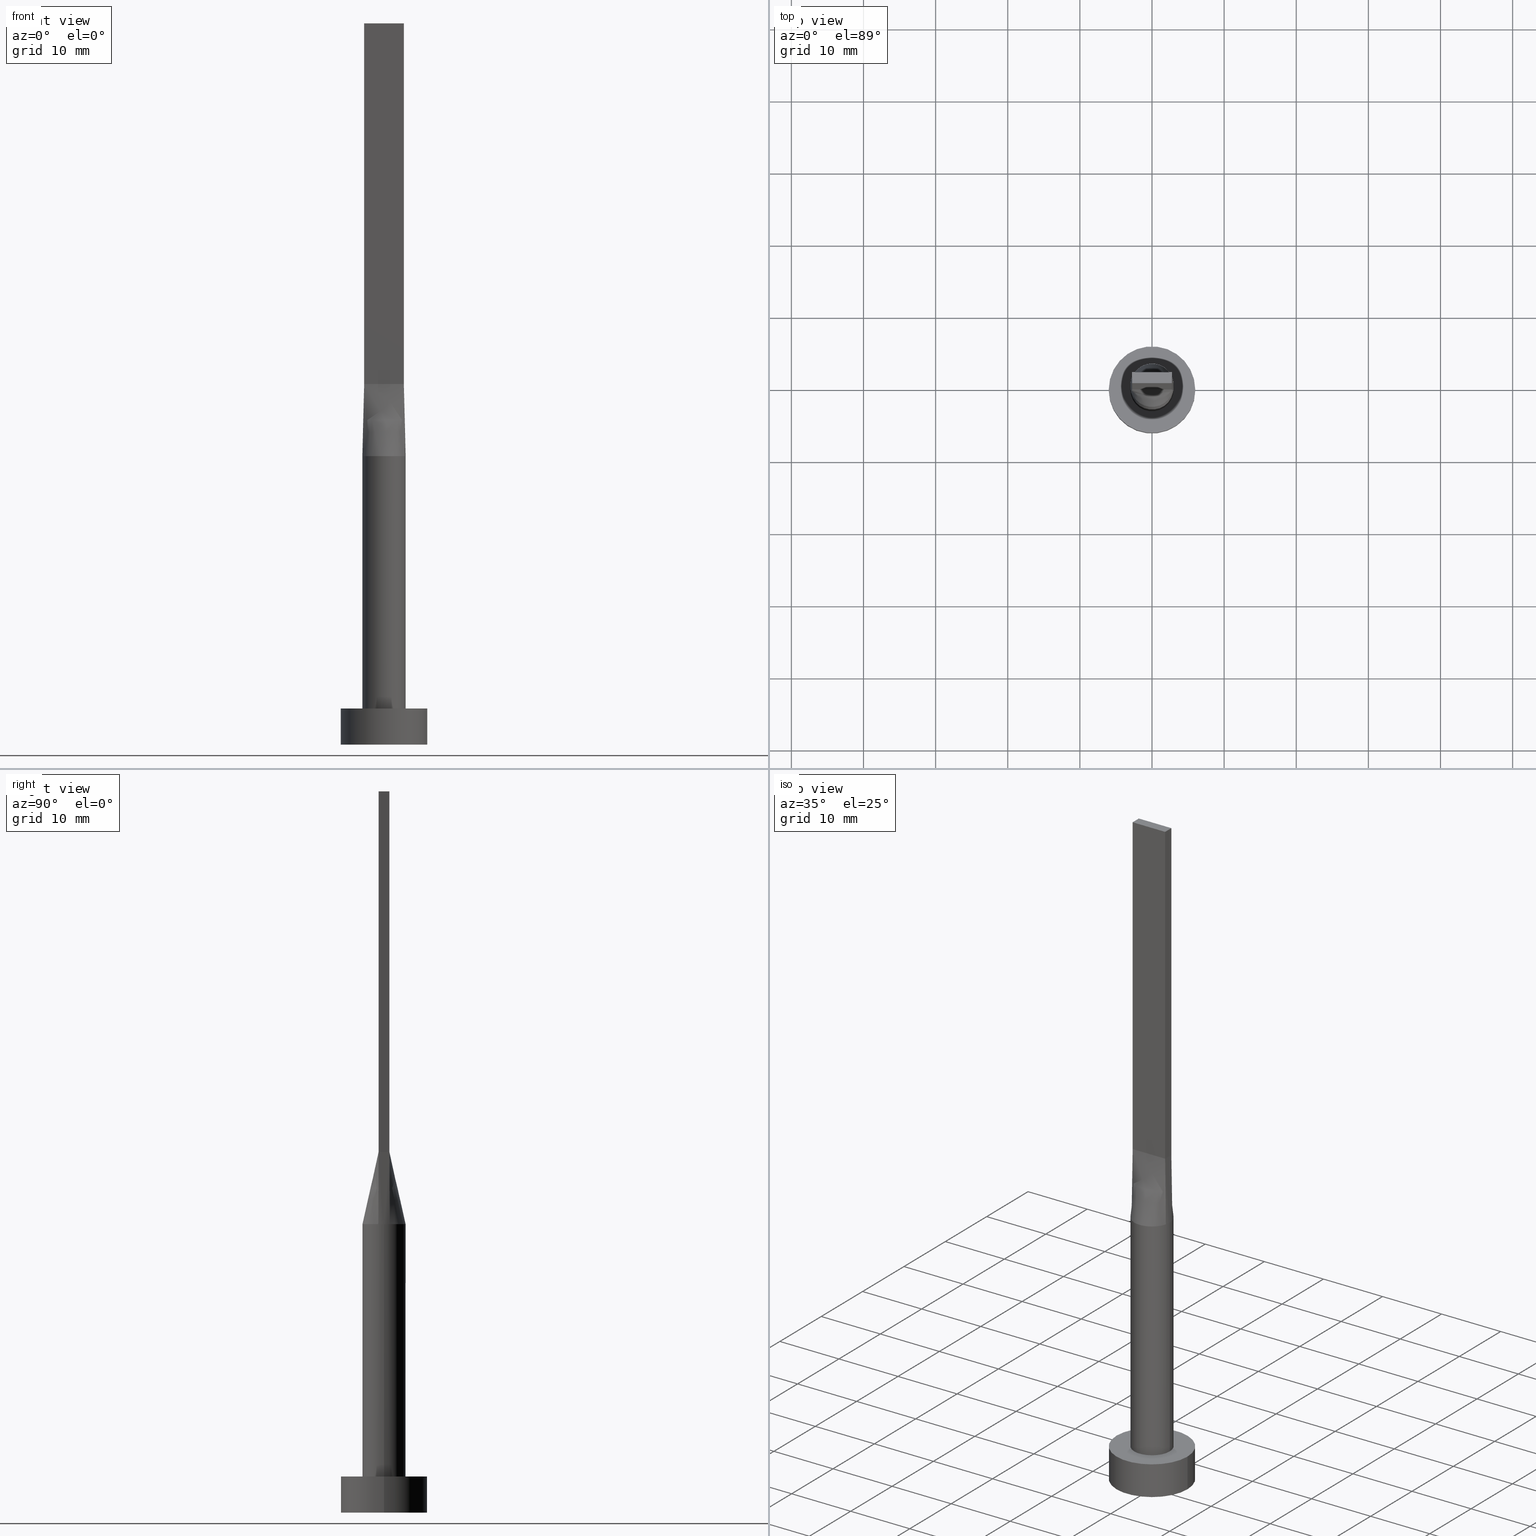
[diagram: canonical four-view strip — front | top / right | iso, engineering-drawing reading convention]
A machine part, canonical four-view strip (front | top / right | iso — engineering-drawing reading convention). The complete STEP part file that produces these views, byte-faithful:
ISO-10303-21;
HEADER;
FILE_DESCRIPTION (( 'STEP AP203' ),
    '1' );
FILE_NAME ('23a7.STEP',
    '2023-02-13T11:40:01',
    ( '' ),
    ( '' ),
    'SwSTEP 2.0',
    'SolidWorks 2019',
    '' );
FILE_SCHEMA (( 'CONFIG_CONTROL_DESIGN' ));
ENDSEC;

DATA;
#1 = LINE ( 'NONE', #192, #541 ) ;
#2 = FACE_OUTER_BOUND ( 'NONE', #331, .T. ) ;
#3 = ORIENTED_EDGE ( 'NONE', *, *, #50, .F. ) ;
#4 = CARTESIAN_POINT ( 'NONE',  ( 2.750000000000000000, -0.4999999999999992784, 50.00000000000000000 ) ) ;
#5 = ADVANCED_FACE ( 'NONE', ( #2 ), #351, .T. ) ;
#6 = CARTESIAN_POINT ( 'NONE',  ( 2.750000000000000000, -0.7499999999999997780, 50.00000000000000000 ) ) ;
#7 = DIRECTION ( 'NONE',  ( 1.000000000000000000, 0.000000000000000000, 0.000000000000000000 ) ) ;
#8 = VERTEX_POINT ( 'NONE', #97 ) ;
#9 = CARTESIAN_POINT ( 'NONE',  ( -2.894489875237701959, -0.7894071376467488577, 40.00000000000000000 ) ) ;
#10 = AXIS2_PLACEMENT_3D ( 'NONE', #124, #530, #517 ) ;
#11 = CARTESIAN_POINT ( 'NONE',  ( 2.750000000000000000, 0.7500000000000002220, 100.0000000000000000 ) ) ;
#12 = CARTESIAN_POINT ( 'NONE',  ( -0.2291666666666670460, 0.7500000000000003331, 50.00000000000000711 ) ) ;
#13 = VERTEX_POINT ( 'NONE', #369 ) ;
#14 = DIRECTION ( 'NONE',  ( 0.000000000000000000, 0.000000000000000000, 1.000000000000000000 ) ) ;
#15 =( GEOMETRIC_REPRESENTATION_CONTEXT ( 3 ) GLOBAL_UNCERTAINTY_ASSIGNED_CONTEXT ( ( #381 ) ) GLOBAL_UNIT_ASSIGNED_CONTEXT ( ( #115, #258, #422 ) ) REPRESENTATION_CONTEXT ( 'NONE', 'WORKASPACE' ) );
#16 = CARTESIAN_POINT ( 'NONE',  ( -2.750000000000000000, 0.7500000000000002220, 50.00000000000000000 ) ) ;
#17 = EDGE_CURVE ( 'NONE', #207, #441, #42, .T. ) ;
#18 = VERTEX_POINT ( 'NONE', #280 ) ;
#19 = CARTESIAN_POINT ( 'NONE',  ( -2.894291463713197121, -0.7893522173763259930, 40.00000000000000000 ) ) ;
#20 = CARTESIAN_POINT ( 'NONE',  ( 2.894291463713197121, 0.7893522173763263261, 40.00000000000000000 ) ) ;
#21 = CARTESIAN_POINT ( 'NONE',  ( 0.3818979204996085230, 3.000000000000001332, 40.00000000000000000 ) ) ;
#22 = LOCAL_TIME ( 12, 40, 1.000000000000000000, #448 ) ;
#23 = EDGE_CURVE ( 'NONE', #303, #363, #284, .T. ) ;
#24 = CARTESIAN_POINT ( 'NONE',  ( 1.604166666666666519, 0.7500000000000002220, 50.00000000000000000 ) ) ;
#25 = DIRECTION ( 'NONE',  ( 0.000000000000000000, 0.000000000000000000, 1.000000000000000000 ) ) ;
#26 = ORIENTED_EDGE ( 'NONE', *, *, #487, .F. ) ;
#27 = CARTESIAN_POINT ( 'NONE',  ( 2.750000000000000000, 0.7500000000000002220, 100.0000000000000000 ) ) ;
#28 = CARTESIAN_POINT ( 'NONE',  ( -6.000000000000000888, 0.000000000000000000, 5.000000000000000000 ) ) ;
#29 = ORIENTED_EDGE ( 'NONE', *, *, #446, .T. ) ;
#30 = PLANE ( 'NONE',  #401 ) ;
#31 = EDGE_CURVE ( 'NONE', #8, #230, #326, .T. ) ;
#32 = VERTEX_POINT ( 'NONE', #9 ) ;
#33 = AXIS2_PLACEMENT_3D ( 'NONE', #174, #312, #399 ) ;
#34 = CARTESIAN_POINT ( 'NONE',  ( 0.000000000000000000, 0.000000000000000000, 100.0000000000000000 ) ) ;
#35 = LOCAL_TIME ( 12, 40, 1.000000000000000000, #451 ) ;
#36 = ORIENTED_EDGE ( 'NONE', *, *, #425, .F. ) ;
#37 = CARTESIAN_POINT ( 'NONE',  ( -2.750000000000000000, 0.7500000000000002220, 100.0000000000000000 ) ) ;
#38 = ORIENTED_EDGE ( 'NONE', *, *, #277, .F. ) ;
#39 = ORIENTED_EDGE ( 'NONE', *, *, #546, .F. ) ;
#40 = APPROVAL_DATE_TIME ( #533, #395 ) ;
#41 = ADVANCED_FACE ( 'NONE', ( #535 ), #136, .F. ) ;
#42 = LINE ( 'NONE', #545, #222 ) ;
#43 = APPROVAL_PERSON_ORGANIZATION ( #397, #395, #400 ) ;
#44 = DATE_AND_TIME ( #525, #90 ) ;
#45 = ORIENTED_EDGE ( 'NONE', *, *, #209, .T. ) ;
#46 = CARTESIAN_POINT ( 'NONE',  ( -2.248179627679386616, -2.014142483996539390, 39.99999999999999289 ) ) ;
#47 = CYLINDRICAL_SURFACE ( 'NONE', #365, 3.000000000000000444 ) ;
#48 = CARTESIAN_POINT ( 'NONE',  ( -2.291666666666665186, -0.7499999999999995559, 50.00000000000000000 ) ) ;
#49 = CLOSED_SHELL ( 'NONE', ( #571, #455, #324, #246, #377, #130, #5, #419, #103, #85, #237, #501, #528, #41, #138 ) ) ;
#50 = EDGE_CURVE ( 'NONE', #408, #18, #529, .T. ) ;
#51 = DIRECTION ( 'NONE',  ( 0.000000000000000000, 0.000000000000000000, 1.000000000000000000 ) ) ;
#52 = CARTESIAN_POINT ( 'NONE',  ( 2.520833333333333481, -0.7499999999999997780, 50.00000000000000000 ) ) ;
#53 = FACE_OUTER_BOUND ( 'NONE', #215, .T. ) ;
#54 = CARTESIAN_POINT ( 'NONE',  ( 1.604166666666668961, -0.7499999999999997780, 50.00000000000000000 ) ) ;
#55 = EDGE_LOOP ( 'NONE', ( #167, #398, #416, #447 ) ) ;
#56 = CARTESIAN_POINT ( 'NONE',  ( 0.000000000000000000, 0.000000000000000000, 5.000000000000000000 ) ) ;
#57 = CARTESIAN_POINT ( 'NONE',  ( 1.751288851749022379, 2.458468820606022565, 39.99999999999998579 ) ) ;
#58 = FACE_OUTER_BOUND ( 'NONE', #227, .T. ) ;
#59 = VERTEX_POINT ( 'NONE', #476 ) ;
#60 = CARTESIAN_POINT ( 'NONE',  ( -1.145833333333333703, 0.7500000000000002220, 50.00000000000000000 ) ) ;
#61 = CC_DESIGN_PERSON_AND_ORGANIZATION_ASSIGNMENT ( #179, #181, ( #157 ) ) ;
#62 = ORIENTED_EDGE ( 'NONE', *, *, #425, .T. ) ;
#63 = CARTESIAN_POINT ( 'NONE',  ( 0.000000000000000000, 0.000000000000000000, 5.000000000000000000 ) ) ;
#64 = APPROVAL_PERSON_ORGANIZATION ( #569, #519, #353 ) ;
#65 = CARTESIAN_POINT ( 'NONE',  ( -0.7628506052746797383, 2.924692134573155133, 40.00000000000000000 ) ) ;
#66 = DIRECTION ( 'NONE',  ( -0.000000000000000000, -0.000000000000000000, -1.000000000000000000 ) ) ;
#67 = CARTESIAN_POINT ( 'NONE',  ( 2.822145731856598339, 0.7696761086881640512, 45.00000000000000000 ) ) ;
#68 = EDGE_CURVE ( 'NONE', #59, #303, #245, .T. ) ;
#69 = CARTESIAN_POINT ( 'NONE',  ( -1.751288851749021491, 2.458468820606022565, 39.99999999999999289 ) ) ;
#70 = CARTESIAN_POINT ( 'NONE',  ( -6.000000000000000888, 0.000000000000000000, 5.000000000000000000 ) ) ;
#71 = VECTOR ( 'NONE', #114, 1000.000000000000000 ) ;
#72 = DIRECTION ( 'NONE',  ( 0.000000000000000000, 0.000000000000000000, 1.000000000000000000 ) ) ;
#73 = CARTESIAN_POINT ( 'NONE',  ( -0.3818979204996078569, 3.000000000000000888, 40.00000000000000000 ) ) ;
#74 = EDGE_LOOP ( 'NONE', ( #560, #548 ) ) ;
#75 = FACE_OUTER_BOUND ( 'NONE', #341, .T. ) ;
#76 = APPROVAL_DATE_TIME ( #44, #519 ) ;
#77 = FACE_OUTER_BOUND ( 'NONE', #352, .T. ) ;
#78 = B_SPLINE_SURFACE_WITH_KNOTS ( 'NONE', 3, 1, ( 
 ( #551, #338 ),
 ( #513, #336 ),
 ( #505, #249 ),
 ( #105, #380 ),
 ( #471, #101 ),
 ( #19, #251 ) ),
 .UNSPECIFIED., .F., .F., .F.,
 ( 4, 2, 4 ),
 ( 2, 2 ),
 ( 0.000000000000000000, 0.5000000000000000000, 1.000000000000000000 ),
 ( 0.000000000000000000, 1.000000000000000000 ),
 .UNSPECIFIED. ) ;
#79 = VERTEX_POINT ( 'NONE', #107 ) ;
#80 = DIRECTION ( 'NONE',  ( -0.000000000000000000, 1.000000000000000000, -0.000000000000000000 ) ) ;
#81 = AXIS2_PLACEMENT_3D ( 'NONE', #542, #14, #461 ) ;
#82 = ORIENTED_EDGE ( 'NONE', *, *, #465, .T. ) ;
#83 = CARTESIAN_POINT ( 'NONE',  ( 2.750000000000000000, -0.7499999999999997780, 100.0000000000000000 ) ) ;
#84 = DATE_TIME_ROLE ( 'classification_date' ) ;
#85 = ADVANCED_FACE ( 'NONE', ( #334 ), #171, .T. ) ;
#86 = CARTESIAN_POINT ( 'NONE',  ( 1.447928580458857972, -2.653161878569119558, 40.00000000000000000 ) ) ;
#87 = ORIENTED_EDGE ( 'NONE', *, *, #92, .F. ) ;
#88 = DATE_AND_TIME ( #532, #140 ) ;
#89 = CARTESIAN_POINT ( 'NONE',  ( 2.894291463713196677, -0.7893522173763275473, 40.00000000000000000 ) ) ;
#90 = LOCAL_TIME ( 12, 40, 1.000000000000000000, #319 ) ;
#91 = CARTESIAN_POINT ( 'NONE',  ( 1.833333333333335258, -0.7499999999999997780, 50.00000000000000000 ) ) ;
#92 = EDGE_CURVE ( 'NONE', #223, #127, #193, .T. ) ;
#93 = CARTESIAN_POINT ( 'NONE',  ( 3.000000000000000888, -0.2678361673275873600, 39.99999999999999289 ) ) ;
#94 = CARTESIAN_POINT ( 'NONE',  ( -1.833333333333331261, -0.7499999999999995559, 50.00000000000000000 ) ) ;
#95 = VECTOR ( 'NONE', #159, 1000.000000000000000 ) ;
#96 = DIRECTION ( 'NONE',  ( 1.000000000000000000, 0.000000000000000000, 0.000000000000000000 ) ) ;
#97 = CARTESIAN_POINT ( 'NONE',  ( 3.000000000000000888, 4.817174831141495148E-17, 39.99999999999999289 ) ) ;
#98 = VECTOR ( 'NONE', #234, 1000.000000000000000 ) ;
#99 = AXIS2_PLACEMENT_3D ( 'NONE', #459, #370, #96 ) ;
#100 = CARTESIAN_POINT ( 'NONE',  ( 3.000000000000000444, 0.2678361673275868049, 39.99999999999998579 ) ) ;
#101 = CARTESIAN_POINT ( 'NONE',  ( -2.750000000000000000, -0.4999999999999993339, 50.00000000000000000 ) ) ;
#102 = DIRECTION ( 'NONE',  ( 5.913830031739115543E-17, 1.000000000000000000, -0.000000000000000000 ) ) ;
#103 = ADVANCED_FACE ( 'NONE', ( #382 ), #78, .T. ) ;
#104 = ORIENTED_EDGE ( 'NONE', *, *, #199, .T. ) ;
#105 = CARTESIAN_POINT ( 'NONE',  ( -2.999999999999999112, -0.2678361673275861388, 39.99999999999998579 ) ) ;
#106 = PLANE ( 'NONE',  #276 ) ;
#107 = CARTESIAN_POINT ( 'NONE',  ( -3.000000000000000444, 0.000000000000000000, 5.000000000000000000 ) ) ;
#108 = VECTOR ( 'NONE', #428, 1000.000000000000000 ) ;
#109 = CARTESIAN_POINT ( 'NONE',  ( 0.000000000000000000, 0.000000000000000000, 40.00000000000000000 ) ) ;
#110 = LINE ( 'NONE', #296, #123 ) ;
#111 = CARTESIAN_POINT ( 'NONE',  ( 0.000000000000000000, 0.000000000000000000, 5.000000000000000000 ) ) ;
#112 = CARTESIAN_POINT ( 'NONE',  ( -2.291666666666666519, 0.7500000000000002220, 50.00000000000000000 ) ) ;
#113 = VERTEX_POINT ( 'NONE', #289 ) ;
#114 = DIRECTION ( 'NONE',  ( -0.000000000000000000, -0.000000000000000000, -1.000000000000000000 ) ) ;
#115 =( LENGTH_UNIT ( ) NAMED_UNIT ( * ) SI_UNIT ( .MILLI., .METRE. ) );
#116 = AXIS2_PLACEMENT_3D ( 'NONE', #63, #367, #186 ) ;
#117 = LINE ( 'NONE', #211, #298 ) ;
#118 = CARTESIAN_POINT ( 'NONE',  ( -0.7628506052746797383, 2.924692134573155133, 40.00000000000000000 ) ) ;
#119 = EDGE_LOOP ( 'NONE', ( #145, #440 ) ) ;
#120 = EDGE_CURVE ( 'NONE', #59, #441, #110, .T. ) ;
#121 = LINE ( 'NONE', #308, #98 ) ;
#122 = ADVANCED_BREP_SHAPE_REPRESENTATION ( '23a7', ( #350, #510 ), #15 ) ;
#123 = VECTOR ( 'NONE', #66, 1000.000000000000000 ) ;
#124 = CARTESIAN_POINT ( 'NONE',  ( 2.750000000000000000, 0.7500000000000002220, 100.0000000000000000 ) ) ;
#125 = PRODUCT_DEFINITION_SHAPE ( 'NONE', 'NONE',  #406 ) ;
#126 = ORIENTED_EDGE ( 'NONE', *, *, #190, .F. ) ;
#127 = VERTEX_POINT ( 'NONE', #427 ) ;
#128 = LINE ( 'NONE', #568, #135 ) ;
#129 = CIRCLE ( 'NONE', #99, 3.000000000000000444 ) ;
#130 = ADVANCED_FACE ( 'NONE', ( #392 ), #47, .T. ) ;
#131 = ORIENTED_EDGE ( 'NONE', *, *, #277, .T. ) ;
#132 = PERSON_AND_ORGANIZATION_ROLE ( 'design_supplier' ) ;
#133 = APPLICATION_CONTEXT ( 'configuration controlled 3d designs of mechanical parts and assemblies' ) ;
#134 = PERSON_AND_ORGANIZATION ( #453, #268 ) ;
#135 = VECTOR ( 'NONE', #524, 1000.000000000000000 ) ;
#136 = PLANE ( 'NONE',  #201 ) ;
#137 = PERSON_AND_ORGANIZATION ( #453, #268 ) ;
#138 = ADVANCED_FACE ( 'NONE', ( #168 ), #30, .T. ) ;
#139 = ORIENTED_EDGE ( 'NONE', *, *, #199, .F. ) ;
#140 = LOCAL_TIME ( 12, 40, 1.000000000000000000, #394 ) ;
#141 = CARTESIAN_POINT ( 'NONE',  ( 2.894514141151844910, -0.7894138151126538494, 40.00000000000000000 ) ) ;
#142 = CARTESIAN_POINT ( 'NONE',  ( -0.3818979204996094667, -3.000000000000000000, 40.00000000000000000 ) ) ;
#143 = DIRECTION ( 'NONE',  ( 0.000000000000000000, 0.000000000000000000, 1.000000000000000000 ) ) ;
#144 = CARTESIAN_POINT ( 'NONE',  ( 2.750000000000000000, -0.7499999999999997780, 100.0000000000000000 ) ) ;
#145 = ORIENTED_EDGE ( 'NONE', *, *, #564, .F. ) ;
#146 = CARTESIAN_POINT ( 'NONE',  ( -2.894506632021299541, 0.7894116946786272626, 40.00000000000000000 ) ) ;
#147 = CARTESIAN_POINT ( 'NONE',  ( -1.447928580458858416, 2.653161878569119558, 40.00000000000000000 ) ) ;
#148 = VECTOR ( 'NONE', #253, 1000.000000000000000 ) ;
#149 = CC_DESIGN_PERSON_AND_ORGANIZATION_ASSIGNMENT ( #536, #132, ( #157 ) ) ;
#150 = DIRECTION ( 'NONE',  ( 0.000000000000000000, 0.000000000000000000, 1.000000000000000000 ) ) ;
#151 = CARTESIAN_POINT ( 'NONE',  ( -2.750000000000000000, -0.7499999999999994449, 100.0000000000000000 ) ) ;
#152 = DIRECTION ( 'NONE',  ( 1.000000000000000000, 0.000000000000000000, 0.000000000000000000 ) ) ;
#153 = CARTESIAN_POINT ( 'NONE',  ( 2.733316749964668446, 1.269511353635831341, 40.00000000000002132 ) ) ;
#154 = CARTESIAN_POINT ( 'NONE',  ( 2.894482401701604424, 0.7894050286368272662, 40.00000000000000000 ) ) ;
#155 = EDGE_CURVE ( 'NONE', #363, #13, #117, .T. ) ;
#156 = CARTESIAN_POINT ( 'NONE',  ( -0.9166666666666669627, 0.7500000000000002220, 50.00000000000000000 ) ) ;
#157 = PRODUCT_DEFINITION_FORMATION_WITH_SPECIFIED_SOURCE ( 'LIBOVOLN�', '', #220, .NOT_KNOWN. ) ;
#158 = DIRECTION ( 'NONE',  ( -0.01442753284129399960, 0.003934781683989411159, 0.9998881756422629552 ) ) ;
#159 = DIRECTION ( 'NONE',  ( 1.000000000000000000, -5.913830031739115543E-17, 0.000000000000000000 ) ) ;
#160 = CARTESIAN_POINT ( 'NONE',  ( -1.447928580458858416, 2.653161878569119558, 40.00000000000000000 ) ) ;
#161 = ORIENTED_EDGE ( 'NONE', *, *, #553, .F. ) ;
#162 = LINE ( 'NONE', #340, #71 ) ;
#163 = VECTOR ( 'NONE', #364, 1000.000000000000000 ) ;
#164 = DIRECTION ( 'NONE',  ( -0.000000000000000000, -0.000000000000000000, -1.000000000000000000 ) ) ;
#165 = CARTESIAN_POINT ( 'NONE',  ( 2.442412046818595250, 1.765588549521970529, 40.00000000000000711 ) ) ;
#166 = CC_DESIGN_DATE_AND_TIME_ASSIGNMENT ( #88, #173, ( #406 ) ) ;
#167 = ORIENTED_EDGE ( 'NONE', *, *, #264, .T. ) ;
#168 = FACE_OUTER_BOUND ( 'NONE', #195, .T. ) ;
#169 = APPROVAL_STATUS ( 'not_yet_approved' ) ;
#170 = ORIENTED_EDGE ( 'NONE', *, *, #229, .F. ) ;
#171 = B_SPLINE_SURFACE_WITH_KNOTS ( 'NONE', 3, 1, ( 
 ( #20, #292 ),
 ( #468, #429 ),
 ( #153, #203 ),
 ( #385, #250 ),
 ( #286, #24 ),
 ( #57, #332 ),
 ( #329, #205 ),
 ( #559, #556 ),
 ( #554, #241 ),
 ( #387, #12 ),
 ( #65, #511 ),
 ( #147, #156 ),
 ( #69, #60 ),
 ( #508, #418 ),
 ( #475, #423 ),
 ( #421, #112 ),
 ( #297, #200 ),
 ( #503, #16 ) ),
 .UNSPECIFIED., .F., .F., .F.,
 ( 4, 2, 2, 2, 2, 2, 2, 2, 4 ),
 ( 2, 2 ),
 ( 0.000000000000000000, 0.1250000000000000000, 0.2500000000000000000, 0.3750000000000000000, 0.5000000000000000000, 0.6250000000000000000, 0.7500000000000000000, 0.8750000000000000000, 1.000000000000000000 ),
 ( 0.000000000000000000, 1.000000000000000000 ),
 .UNSPECIFIED. ) ;
#172 = DIRECTION ( 'NONE',  ( 1.000000000000000000, -5.913830031739115543E-17, 0.000000000000000000 ) ) ;
#173 = DATE_TIME_ROLE ( 'creation_date' ) ;
#174 = CARTESIAN_POINT ( 'NONE',  ( 0.000000000000000000, 0.000000000000000000, 0.000000000000000000 ) ) ;
#175 = APPROVAL_DATE_TIME ( #485, #384 ) ;
#176 = AXIS2_PLACEMENT_3D ( 'NONE', #390, #164, #521 ) ;
#177 = EDGE_LOOP ( 'NONE', ( #565, #373, #26, #38, #62, #213 ) ) ;
#178 = CIRCLE ( 'NONE', #81, 3.000000000000000444 ) ;
#179 = PERSON_AND_ORGANIZATION ( #453, #268 ) ;
#180 = CARTESIAN_POINT ( 'NONE',  ( 0.7628506052746785171, -2.924692134573155577, 39.99999999999999289 ) ) ;
#181 = PERSON_AND_ORGANIZATION_ROLE ( 'creator' ) ;
#182 = CARTESIAN_POINT ( 'NONE',  ( -2.442412046818594806, -1.765588549521968975, 40.00000000000000000 ) ) ;
#183 = CARTESIAN_POINT ( 'NONE',  ( -2.750000000000000000, -0.7499999999999994449, 100.0000000000000000 ) ) ;
#184 = VECTOR ( 'NONE', #281, 1000.000000000000000 ) ;
#185 = CARTESIAN_POINT ( 'NONE',  ( -2.894291463713197121, -0.7893522173763257710, 40.00000000000000000 ) ) ;
#186 = DIRECTION ( 'NONE',  ( -1.000000000000000000, 0.000000000000000000, 0.000000000000000000 ) ) ;
#187 = CARTESIAN_POINT ( 'NONE',  ( 2.248179627679384840, -2.014142483996542055, 39.99999999999999289 ) ) ;
#188 = CYLINDRICAL_SURFACE ( 'NONE', #116, 6.000000000000000888 ) ;
#189 = CARTESIAN_POINT ( 'NONE',  ( -1.751288851749022379, -2.458468820606022565, 40.00000000000000000 ) ) ;
#190 = EDGE_CURVE ( 'NONE', #223, #531, #438, .T. ) ;
#191 = ORIENTED_EDGE ( 'NONE', *, *, #120, .F. ) ;
#192 = CARTESIAN_POINT ( 'NONE',  ( -2.750000000000000000, 0.7500000000000002220, 100.0000000000000000 ) ) ;
#193 = LINE ( 'NONE', #197, #290 ) ;
#194 = AXIS2_PLACEMENT_3D ( 'NONE', #506, #143, #7 ) ;
#195 = EDGE_LOOP ( 'NONE', ( #567, #403, #256, #242 ) ) ;
#196 = DIRECTION ( 'NONE',  ( 1.000000000000000000, -5.329070518200751394E-15, 0.000000000000000000 ) ) ;
#197 = CARTESIAN_POINT ( 'NONE',  ( 6.000000000000000888, 7.347880794884120722E-16, 5.000000000000000000 ) ) ;
#198 = CYLINDRICAL_SURFACE ( 'NONE', #443, 3.000000000000000444 ) ;
#199 = EDGE_CURVE ( 'NONE', #113, #13, #436, .T. ) ;
#200 = CARTESIAN_POINT ( 'NONE',  ( -2.520833333333333037, 0.7500000000000002220, 50.00000000000000000 ) ) ;
#201 = AXIS2_PLACEMENT_3D ( 'NONE', #278, #538, #454 ) ;
#202 = CARTESIAN_POINT ( 'NONE',  ( 0.000000000000000000, 0.000000000000000000, 0.000000000000000000 ) ) ;
#203 = CARTESIAN_POINT ( 'NONE',  ( 2.291666666666666519, 0.7500000000000002220, 50.00000000000000000 ) ) ;
#204 = CARTESIAN_POINT ( 'NONE',  ( 1.447928580458859305, 2.653161878569118670, 40.00000000000000000 ) ) ;
#205 = CARTESIAN_POINT ( 'NONE',  ( 0.9166666666666664076, 0.7500000000000003331, 50.00000000000000711 ) ) ;
#206 = CARTESIAN_POINT ( 'NONE',  ( -1.751288851749021491, 2.458468820606022565, 39.99999999999999289 ) ) ;
#207 = VERTEX_POINT ( 'NONE', #344 ) ;
#208 = CYLINDRICAL_SURFACE ( 'NONE', #176, 6.000000000000000888 ) ;
#209 = EDGE_CURVE ( 'NONE', #441, #113, #572, .T. ) ;
#210 = CARTESIAN_POINT ( 'NONE',  ( 2.733316749964668446, 1.269511353635831341, 40.00000000000002132 ) ) ;
#211 = CARTESIAN_POINT ( 'NONE',  ( 2.750000000000000000, 0.7500000000000002220, 100.0000000000000000 ) ) ;
#212 = CIRCLE ( 'NONE', #539, 3.000000000000000444 ) ;
#213 = ORIENTED_EDGE ( 'NONE', *, *, #564, .T. ) ;
#214 = CC_DESIGN_SECURITY_CLASSIFICATION ( #311, ( #157 ) ) ;
#215 = EDGE_LOOP ( 'NONE', ( #354, #295, #389, #139, #161 ) ) ;
#216 = ORIENTED_EDGE ( 'NONE', *, *, #580, .F. ) ;
#217 = DIRECTION ( 'NONE',  ( 1.000000000000000000, 0.000000000000000000, 0.000000000000000000 ) ) ;
#218 = APPROVAL_STATUS ( 'not_yet_approved' ) ;
#219 = ORIENTED_EDGE ( 'NONE', *, *, #537, .F. ) ;
#220 = PRODUCT ( '23a7', '23a7', '', ( #557 ) ) ;
#221 = DIRECTION ( 'NONE',  ( 1.000000000000000000, 0.000000000000000000, 0.000000000000000000 ) ) ;
#222 = VECTOR ( 'NONE', #543, 1000.000000000000000 ) ;
#223 = VERTEX_POINT ( 'NONE', #231 ) ;
#224 = PERSON_AND_ORGANIZATION_ROLE ( 'classification_officer' ) ;
#225 = AXIS2_PLACEMENT_3D ( 'NONE', #183, #102, #555 ) ;
#226 = CARTESIAN_POINT ( 'NONE',  ( 0.3818979204996068022, -3.000000000000001332, 40.00000000000000000 ) ) ;
#227 = EDGE_LOOP ( 'NONE', ( #45, #279, #474, #534 ) ) ;
#228 = ORIENTED_EDGE ( 'NONE', *, *, #507, .F. ) ;
#229 = EDGE_CURVE ( 'NONE', #441, #32, #128, .T. ) ;
#230 = VERTEX_POINT ( 'NONE', #479 ) ;
#231 = CARTESIAN_POINT ( 'NONE',  ( 6.000000000000000888, 7.347880794884120722E-16, 5.000000000000000000 ) ) ;
#232 = VERTEX_POINT ( 'NONE', #527 ) ;
#233 = CARTESIAN_POINT ( 'NONE',  ( -0.4583333333333302062, -0.7499999999999995559, 50.00000000000000711 ) ) ;
#234 = DIRECTION ( 'NONE',  ( 0.01442753284129399960, -0.003934781683989194319, 0.9998881756422629552 ) ) ;
#235 = CARTESIAN_POINT ( 'NONE',  ( -2.733316749964668446, -1.269511353635829787, 40.00000000000001421 ) ) ;
#236 = DIRECTION ( 'NONE',  ( 1.000000000000000000, 0.000000000000000000, -0.000000000000000000 ) ) ;
#237 = ADVANCED_FACE ( 'NONE', ( #482 ), #486, .F. ) ;
#238 = CARTESIAN_POINT ( 'NONE',  ( 2.733316749964666670, -1.269511353635832229, 40.00000000000001421 ) ) ;
#239 = LINE ( 'NONE', #549, #184 ) ;
#240 = EDGE_LOOP ( 'NONE', ( #287, #526, #378, #36, #3, #216 ) ) ;
#241 = CARTESIAN_POINT ( 'NONE',  ( 0.2291666666666662966, 0.7500000000000003331, 50.00000000000000711 ) ) ;
#242 = ORIENTED_EDGE ( 'NONE', *, *, #23, .T. ) ;
#243 = LINE ( 'NONE', #283, #304 ) ;
#244 = ORIENTED_EDGE ( 'NONE', *, *, #487, .T. ) ;
#245 = LINE ( 'NONE', #151, #95 ) ;
#246 = ADVANCED_FACE ( 'NONE', ( #355, #77 ), #269, .T. ) ;
#247 = CIRCLE ( 'NONE', #393, 6.000000000000000888 ) ;
#248 = CARTESIAN_POINT ( 'NONE',  ( 2.830829925251657997, 1.022044525068634302, 39.99999999999999289 ) ) ;
#249 = CARTESIAN_POINT ( 'NONE',  ( -2.750000000000000000, 0.2500000000000003886, 50.00000000000000000 ) ) ;
#250 = CARTESIAN_POINT ( 'NONE',  ( 1.833333333333333037, 0.7500000000000002220, 50.00000000000000000 ) ) ;
#251 = CARTESIAN_POINT ( 'NONE',  ( -2.750000000000000000, -0.7499999999999993339, 50.00000000000000000 ) ) ;
#252 = AXIS2_PLACEMENT_3D ( 'NONE', #111, #25, #335 ) ;
#253 = DIRECTION ( 'NONE',  ( -0.000000000000000000, -0.000000000000000000, -1.000000000000000000 ) ) ;
#254 = VERTEX_POINT ( 'NONE', #37 ) ;
#255 = CC_DESIGN_PERSON_AND_ORGANIZATION_ASSIGNMENT ( #134, #361, ( #406 ) ) ;
#256 = ORIENTED_EDGE ( 'NONE', *, *, #68, .T. ) ;
#257 = DIRECTION ( 'NONE',  ( -0.000000000000000000, -0.000000000000000000, -1.000000000000000000 ) ) ;
#258 =( NAMED_UNIT ( * ) PLANE_ANGLE_UNIT ( ) SI_UNIT ( $, .RADIAN. ) );
#259 = ORIENTED_EDGE ( 'NONE', *, *, #339, .T. ) ;
#260 = CARTESIAN_POINT ( 'NONE',  ( 0.000000000000000000, 0.000000000000000000, 40.00000000000000000 ) ) ;
#261 = PERSON_AND_ORGANIZATION ( #453, #268 ) ;
#262 = DIRECTION ( 'NONE',  ( 0.000000000000000000, 0.000000000000000000, 1.000000000000000000 ) ) ;
#263 = B_SPLINE_CURVE_WITH_KNOTS ( 'NONE', 3,
 ( #509, #248, #210, #165, #391, #477, #204, #299, #21, #73, #118, #160, #206, #432, #294, #307, #388, #473 ),
 .UNSPECIFIED., .F., .F.,
 ( 4, 2, 2, 2, 2, 2, 2, 2, 4 ),
 ( 0.000000000000000000, 0.1250000000000000000, 0.2500000000000000000, 0.3750000000000000000, 0.5000000000000000000, 0.6250000000000000000, 0.7500000000000000000, 0.8750000000000000000, 1.000000000000000000 ),
 .UNSPECIFIED. ) ;
#264 = EDGE_CURVE ( 'NONE', #13, #207, #574, .T. ) ;
#265 = SECURITY_CLASSIFICATION_LEVEL ( 'unclassified' ) ;
#266 = VECTOR ( 'NONE', #306, 1000.000000000000000 ) ;
#267 = EDGE_LOOP ( 'NONE', ( #301, #259, #282, #219 ) ) ;
#268 = ORGANIZATION ( 'NEUR�EN�', 'NEUR�EN�', '' ) ;
#269 = PLANE ( 'NONE',  #430 ) ;
#270 = ORIENTED_EDGE ( 'NONE', *, *, #17, .T. ) ;
#271 = CARTESIAN_POINT ( 'NONE',  ( 2.750000000000000000, 0.7500000000000002220, 50.00000000000000000 ) ) ;
#272 = DATE_AND_TIME ( #315, #452 ) ;
#273 = VECTOR ( 'NONE', #172, 1000.000000000000000 ) ;
#274 = CARTESIAN_POINT ( 'NONE',  ( 1.751288851749020603, -2.458468820606023897, 39.99999999999999289 ) ) ;
#275 = CALENDAR_DATE ( 2023, 13, 2 ) ;
#276 = AXIS2_PLACEMENT_3D ( 'NONE', #325, #410, #236 ) ;
#277 = EDGE_CURVE ( 'NONE', #18, #32, #212, .T. ) ;
#278 = CARTESIAN_POINT ( 'NONE',  ( 2.750000000000000000, -0.7499999999999997780, 100.0000000000000000 ) ) ;
#279 = ORIENTED_EDGE ( 'NONE', *, *, #309, .F. ) ;
#280 = CARTESIAN_POINT ( 'NONE',  ( -3.000000000000000000, -1.912111867153115409E-16, 39.99999999999999289 ) ) ;
#281 = DIRECTION ( 'NONE',  ( 0.000000000000000000, -1.000000000000000000, 0.000000000000000000 ) ) ;
#282 = ORIENTED_EDGE ( 'NONE', *, *, #264, .F. ) ;
#283 = CARTESIAN_POINT ( 'NONE',  ( -3.000000000000000444, 0.000000000000000000, 40.00000000000000000 ) ) ;
#284 = LINE ( 'NONE', #144, #163 ) ;
#285 = CARTESIAN_POINT ( 'NONE',  ( 2.750000000000000000, 0.7500000000000002220, 50.00000000000000000 ) ) ;
#286 = CARTESIAN_POINT ( 'NONE',  ( 2.248179627679386172, 2.014142483996539834, 39.99999999999999289 ) ) ;
#287 = ORIENTED_EDGE ( 'NONE', *, *, #481, .F. ) ;
#288 = DIRECTION ( 'NONE',  ( -0.000000000000000000, -0.000000000000000000, -1.000000000000000000 ) ) ;
#289 = CARTESIAN_POINT ( 'NONE',  ( 2.750000000000000000, -0.7499999999999997780, 50.00000000000000000 ) ) ;
#290 = VECTOR ( 'NONE', #376, 1000.000000000000000 ) ;
#291 = FACE_OUTER_BOUND ( 'NONE', #496, .T. ) ;
#292 = CARTESIAN_POINT ( 'NONE',  ( 2.750000000000000000, 0.7500000000000002220, 50.00000000000000000 ) ) ;
#293 = CIRCLE ( 'NONE', #33, 6.000000000000000888 ) ;
#294 = CARTESIAN_POINT ( 'NONE',  ( -2.442412046818596139, 1.765588549521969641, 40.00000000000001421 ) ) ;
#295 = ORIENTED_EDGE ( 'NONE', *, *, #481, .T. ) ;
#296 = CARTESIAN_POINT ( 'NONE',  ( -2.750000000000000000, -0.7499999999999994449, 100.0000000000000000 ) ) ;
#297 = CARTESIAN_POINT ( 'NONE',  ( -2.830829925251659329, 1.022044525068634302, 39.99999999999999289 ) ) ;
#298 = VECTOR ( 'NONE', #360, 1000.000000000000000 ) ;
#299 = CARTESIAN_POINT ( 'NONE',  ( 0.7628506052746800714, 2.924692134573154689, 40.00000000000000000 ) ) ;
#300 = EDGE_CURVE ( 'NONE', #127, #232, #293, .T. ) ;
#301 = ORIENTED_EDGE ( 'NONE', *, *, #580, .T. ) ;
#302 = DIRECTION ( 'NONE',  ( 1.000000000000000000, 0.000000000000000000, -0.000000000000000000 ) ) ;
#303 = VERTEX_POINT ( 'NONE', #83 ) ;
#304 = VECTOR ( 'NONE', #288, 1000.000000000000000 ) ;
#305 = LINE ( 'NONE', #346, #550 ) ;
#306 = DIRECTION ( 'NONE',  ( -1.000000000000000000, 0.000000000000000000, 0.000000000000000000 ) ) ;
#307 = CARTESIAN_POINT ( 'NONE',  ( -2.733316749964668002, 1.269511353635830453, 40.00000000000001421 ) ) ;
#308 = CARTESIAN_POINT ( 'NONE',  ( -2.822145731856598339, 0.7696761086881630520, 45.00000000000000000 ) ) ;
#309 = EDGE_CURVE ( 'NONE', #303, #113, #162, .T. ) ;
#310 = CARTESIAN_POINT ( 'NONE',  ( 0.000000000000000000, 0.000000000000000000, 5.000000000000000000 ) ) ;
#311 = SECURITY_CLASSIFICATION ( '', '', #265 ) ;
#312 = DIRECTION ( 'NONE',  ( 0.000000000000000000, 0.000000000000000000, 1.000000000000000000 ) ) ;
#313 = APPROVAL_ROLE ( '' ) ;
#314 = CARTESIAN_POINT ( 'NONE',  ( 0.4583333333333364235, -0.7499999999999995559, 50.00000000000000000 ) ) ;
#315 = CALENDAR_DATE ( 2023, 13, 2 ) ;
#316 = EDGE_CURVE ( 'NONE', #363, #254, #434, .T. ) ;
#317 = AXIS2_PLACEMENT_3D ( 'NONE', #349, #442, #217 ) ;
#318 = CARTESIAN_POINT ( 'NONE',  ( 2.830829925251657997, -1.022044525068636078, 40.00000000000000000 ) ) ;
#319 = COORDINATED_UNIVERSAL_TIME_OFFSET ( 1, 0, .AHEAD. ) ;
#320 = APPROVAL_PERSON_ORGANIZATION ( #137, #384, #313 ) ;
#321 = CARTESIAN_POINT ( 'NONE',  ( 0.000000000000000000, 0.000000000000000000, 40.00000000000000000 ) ) ;
#322 = CARTESIAN_POINT ( 'NONE',  ( 0.000000000000000000, 0.000000000000000000, 0.000000000000000000 ) ) ;
#323 = CARTESIAN_POINT ( 'NONE',  ( -0.2291666666666634655, -0.7499999999999995559, 50.00000000000000711 ) ) ;
#324 = ADVANCED_FACE ( 'NONE', ( #75 ), #208, .T. ) ;
#325 = CARTESIAN_POINT ( 'NONE',  ( 0.000000000000000000, 0.000000000000000000, 0.000000000000000000 ) ) ;
#326 = LINE ( 'NONE', #500, #516 ) ;
#327 = DIRECTION ( 'NONE',  ( 0.000000000000000000, 0.000000000000000000, 1.000000000000000000 ) ) ;
#328 = CIRCLE ( 'NONE', #252, 3.000000000000000444 ) ;
#329 = CARTESIAN_POINT ( 'NONE',  ( 1.447928580458859305, 2.653161878569118670, 40.00000000000000000 ) ) ;
#330 = DIRECTION ( 'NONE',  ( -0.000000000000000000, 0.000000000000000000, -1.000000000000000000 ) ) ;
#331 = EDGE_LOOP ( 'NONE', ( #244, #414, #343, #405 ) ) ;
#332 = CARTESIAN_POINT ( 'NONE',  ( 1.145833333333333037, 0.7500000000000003331, 50.00000000000000711 ) ) ;
#333 = FACE_OUTER_BOUND ( 'NONE', #74, .T. ) ;
#334 = FACE_OUTER_BOUND ( 'NONE', #267, .T. ) ;
#335 = DIRECTION ( 'NONE',  ( 1.000000000000000000, 0.000000000000000000, 0.000000000000000000 ) ) ;
#336 = CARTESIAN_POINT ( 'NONE',  ( -2.750000000000000000, 0.5000000000000002220, 50.00000000000000000 ) ) ;
#337 = FACE_OUTER_BOUND ( 'NONE', #240, .T. ) ;
#338 = CARTESIAN_POINT ( 'NONE',  ( -2.750000000000000000, 0.7500000000000002220, 50.00000000000000000 ) ) ;
#339 = EDGE_CURVE ( 'NONE', #408, #207, #121, .T. ) ;
#340 = CARTESIAN_POINT ( 'NONE',  ( 2.750000000000000000, -0.7499999999999997780, 100.0000000000000000 ) ) ;
#341 = EDGE_LOOP ( 'NONE', ( #87, #433, #523, #409 ) ) ;
#342 = LINE ( 'NONE', #28, #148 ) ;
#343 = ORIENTED_EDGE ( 'NONE', *, *, #209, .F. ) ;
#344 = CARTESIAN_POINT ( 'NONE',  ( -2.750000000000000000, 0.7500000000000002220, 50.00000000000000000 ) ) ;
#345 = CC_DESIGN_APPROVAL ( #384, ( #406 ) ) ;
#346 = CARTESIAN_POINT ( 'NONE',  ( 2.822145731856598339, -0.7696761086881637182, 45.00000000000000000 ) ) ;
#347 = ORIENTED_EDGE ( 'NONE', *, *, #92, .T. ) ;
#348 = CC_DESIGN_PERSON_AND_ORGANIZATION_ASSIGNMENT ( #261, #224, ( #311 ) ) ;
#349 = CARTESIAN_POINT ( 'NONE',  ( 0.000000000000000000, 0.000000000000000000, 5.000000000000000000 ) ) ;
#350 = MANIFOLD_SOLID_BREP ( 'P�idat vysunut�m5', #49 ) ;
#351 = B_SPLINE_SURFACE_WITH_KNOTS ( 'NONE', 3, 1, ( 
 ( #185, #581 ),
 ( #366, #498 ),
 ( #235, #48 ),
 ( #182, #94 ),
 ( #46, #415 ),
 ( #189, #460 ),
 ( #492, #491 ),
 ( #374, #233 ),
 ( #142, #323 ),
 ( #226, #404 ),
 ( #180, #314 ),
 ( #86, #579 ),
 ( #274, #412 ),
 ( #187, #54 ),
 ( #495, #91 ),
 ( #238, #450 ),
 ( #318, #52 ),
 ( #89, #6 ) ),
 .UNSPECIFIED., .F., .F., .F.,
 ( 4, 2, 2, 2, 2, 2, 2, 2, 4 ),
 ( 2, 2 ),
 ( 0.000000000000000000, 0.1250000000000000000, 0.2500000000000000000, 0.3750000000000000000, 0.5000000000000000000, 0.6250000000000000000, 0.7500000000000000000, 0.8750000000000000000, 1.000000000000000000 ),
 ( 0.000000000000000000, 1.000000000000000000 ),
 .UNSPECIFIED. ) ;
#352 = EDGE_LOOP ( 'NONE', ( #82, #356 ) ) ;
#353 = APPROVAL_ROLE ( '' ) ;
#354 = ORIENTED_EDGE ( 'NONE', *, *, #494, .T. ) ;
#355 = FACE_BOUND ( 'NONE', #119, .T. ) ;
#356 = ORIENTED_EDGE ( 'NONE', *, *, #190, .T. ) ;
#357 = CALENDAR_DATE ( 2023, 13, 2 ) ;
#358 = AXIS2_PLACEMENT_3D ( 'NONE', #321, #457, #466 ) ;
#359 = EDGE_LOOP ( 'NONE', ( #270, #191, #228, #29 ) ) ;
#360 = DIRECTION ( 'NONE',  ( -0.000000000000000000, -0.000000000000000000, -1.000000000000000000 ) ) ;
#361 = PERSON_AND_ORGANIZATION_ROLE ( 'creator' ) ;
#362 = CC_DESIGN_PERSON_AND_ORGANIZATION_ASSIGNMENT ( #386, #514, ( #220 ) ) ;
#363 = VERTEX_POINT ( 'NONE', #11 ) ;
#364 = DIRECTION ( 'NONE',  ( 0.000000000000000000, 1.000000000000000000, 0.000000000000000000 ) ) ;
#365 = AXIS2_PLACEMENT_3D ( 'NONE', #260, #257, #563 ) ;
#366 = CARTESIAN_POINT ( 'NONE',  ( -2.830829925251658885, -1.022044525068633858, 39.99999999999999289 ) ) ;
#367 = DIRECTION ( 'NONE',  ( -0.000000000000000000, -0.000000000000000000, -1.000000000000000000 ) ) ;
#368 = EDGE_CURVE ( 'NONE', #230, #79, #576, .T. ) ;
#369 = CARTESIAN_POINT ( 'NONE',  ( 2.750000000000000000, 0.7500000000000002220, 50.00000000000000000 ) ) ;
#370 = DIRECTION ( 'NONE',  ( 0.000000000000000000, 0.000000000000000000, 1.000000000000000000 ) ) ;
#371 = VERTEX_POINT ( 'NONE', #141 ) ;
#372 = FACE_OUTER_BOUND ( 'NONE', #359, .T. ) ;
#373 = ORIENTED_EDGE ( 'NONE', *, *, #494, .F. ) ;
#374 = CARTESIAN_POINT ( 'NONE',  ( -0.7628506052746809596, -2.924692134573154245, 39.99999999999998579 ) ) ;
#375 = DIRECTION ( 'NONE',  ( 1.000000000000000000, 0.000000000000000000, 0.000000000000000000 ) ) ;
#376 = DIRECTION ( 'NONE',  ( -0.000000000000000000, -0.000000000000000000, -1.000000000000000000 ) ) ;
#377 = ADVANCED_FACE ( 'NONE', ( #333 ), #106, .F. ) ;
#378 = ORIENTED_EDGE ( 'NONE', *, *, #368, .T. ) ;
#379 = CARTESIAN_POINT ( 'NONE',  ( 2.963522232943965662, 0.5355060635301733818, 40.00000000000000000 ) ) ;
#380 = CARTESIAN_POINT ( 'NONE',  ( -2.750000000000000000, -0.2499999999999994726, 50.00000000000000000 ) ) ;
#381 = UNCERTAINTY_MEASURE_WITH_UNIT (LENGTH_MEASURE( 1.000000000000000082E-05 ), #115, 'distance_accuracy_value', 'NONE');
#382 = FACE_OUTER_BOUND ( 'NONE', #483, .T. ) ;
#383 = APPLICATION_PROTOCOL_DEFINITION ( 'international standard', 'config_control_design', 1994, #133 ) ;
#384 = APPROVAL ( #218, 'NEUR�EN�' ) ;
#385 = CARTESIAN_POINT ( 'NONE',  ( 2.442412046818595250, 1.765588549521970529, 40.00000000000000711 ) ) ;
#386 = PERSON_AND_ORGANIZATION ( #453, #268 ) ;
#387 = CARTESIAN_POINT ( 'NONE',  ( -0.3818979204996078569, 3.000000000000000888, 40.00000000000000000 ) ) ;
#388 = CARTESIAN_POINT ( 'NONE',  ( -2.830829925251659329, 1.022044525068634302, 39.99999999999999289 ) ) ;
#389 = ORIENTED_EDGE ( 'NONE', *, *, #537, .T. ) ;
#390 = CARTESIAN_POINT ( 'NONE',  ( 0.000000000000000000, 0.000000000000000000, 5.000000000000000000 ) ) ;
#391 = CARTESIAN_POINT ( 'NONE',  ( 2.248179627679386172, 2.014142483996539834, 39.99999999999999289 ) ) ;
#392 = FACE_OUTER_BOUND ( 'NONE', #177, .T. ) ;
#393 = AXIS2_PLACEMENT_3D ( 'NONE', #322, #51, #375 ) ;
#394 = COORDINATED_UNIVERSAL_TIME_OFFSET ( 1, 0, .AHEAD. ) ;
#395 = APPROVAL ( #578, 'NEUR�EN�' ) ;
#396 = DIRECTION ( 'NONE',  ( 1.000000000000000000, 0.000000000000000000, -0.000000000000000000 ) ) ;
#397 = PERSON_AND_ORGANIZATION ( #453, #268 ) ;
#398 = ORIENTED_EDGE ( 'NONE', *, *, #446, .F. ) ;
#399 = DIRECTION ( 'NONE',  ( 1.000000000000000000, 0.000000000000000000, 0.000000000000000000 ) ) ;
#400 = APPROVAL_ROLE ( '' ) ;
#401 = AXIS2_PLACEMENT_3D ( 'NONE', #34, #484, #396 ) ;
#402 = EDGE_CURVE ( 'NONE', #232, #127, #247, .T. ) ;
#403 = ORIENTED_EDGE ( 'NONE', *, *, #507, .T. ) ;
#404 = CARTESIAN_POINT ( 'NONE',  ( 0.2291666666666698216, -0.7499999999999995559, 50.00000000000000711 ) ) ;
#405 = ORIENTED_EDGE ( 'NONE', *, *, #229, .T. ) ;
#406 = PRODUCT_DEFINITION ( 'NEZN�M�', '', #157, #426 ) ;
#407 = CARTESIAN_POINT ( 'NONE',  ( -2.750000000000000000, 0.7500000000000002220, 100.0000000000000000 ) ) ;
#408 = VERTEX_POINT ( 'NONE', #146 ) ;
#409 = ORIENTED_EDGE ( 'NONE', *, *, #402, .T. ) ;
#410 = DIRECTION ( 'NONE',  ( 0.000000000000000000, 0.000000000000000000, 1.000000000000000000 ) ) ;
#411 = AXIS2_PLACEMENT_3D ( 'NONE', #467, #327, #196 ) ;
#412 = CARTESIAN_POINT ( 'NONE',  ( 1.145833333333335924, -0.7499999999999996669, 50.00000000000000000 ) ) ;
#413 = DIRECTION ( 'NONE',  ( 1.000000000000000000, 0.000000000000000000, -0.000000000000000000 ) ) ;
#414 = ORIENTED_EDGE ( 'NONE', *, *, #553, .T. ) ;
#415 = CARTESIAN_POINT ( 'NONE',  ( -1.604166666666664520, -0.7499999999999995559, 50.00000000000000000 ) ) ;
#416 = ORIENTED_EDGE ( 'NONE', *, *, #316, .F. ) ;
#417 = CARTESIAN_POINT ( 'NONE',  ( 2.894291463713196677, -0.7893522173763282135, 40.00000000000000000 ) ) ;
#418 = CARTESIAN_POINT ( 'NONE',  ( -1.604166666666666963, 0.7500000000000002220, 50.00000000000000000 ) ) ;
#419 = ADVANCED_FACE ( 'NONE', ( #53 ), #573, .T. ) ;
#420 = CARTESIAN_POINT ( 'NONE',  ( 2.750000000000000000, 0.5000000000000006661, 50.00000000000000000 ) ) ;
#421 = CARTESIAN_POINT ( 'NONE',  ( -2.733316749964668002, 1.269511353635830453, 40.00000000000001421 ) ) ;
#422 =( NAMED_UNIT ( * ) SI_UNIT ( $, .STERADIAN. ) SOLID_ANGLE_UNIT ( ) );
#423 = CARTESIAN_POINT ( 'NONE',  ( -1.833333333333333481, 0.7500000000000002220, 50.00000000000000000 ) ) ;
#424 = LINE ( 'NONE', #67, #108 ) ;
#425 = EDGE_CURVE ( 'NONE', #18, #79, #243, .T. ) ;
#426 = DESIGN_CONTEXT ( 'detailed design', #488, 'design' ) ;
#427 = CARTESIAN_POINT ( 'NONE',  ( 6.000000000000000888, 7.347880794884120722E-16, 0.000000000000000000 ) ) ;
#428 = DIRECTION ( 'NONE',  ( -0.01442753284129399960, -0.003934781683989389475, 0.9998881756422629552 ) ) ;
#429 = CARTESIAN_POINT ( 'NONE',  ( 2.520833333333333037, 0.7500000000000002220, 50.00000000000000000 ) ) ;
#430 = AXIS2_PLACEMENT_3D ( 'NONE', #310, #262, #302 ) ;
#431 = AXIS2_PLACEMENT_3D ( 'NONE', #56, #150, #152 ) ;
#432 = CARTESIAN_POINT ( 'NONE',  ( -2.248179627679385728, 2.014142483996540278, 39.99999999999998579 ) ) ;
#433 = ORIENTED_EDGE ( 'NONE', *, *, #465, .F. ) ;
#434 = LINE ( 'NONE', #27, #266 ) ;
#435 = EDGE_LOOP ( 'NONE', ( #104, #520, #515, #478 ) ) ;
#436 = LINE ( 'NONE', #271, #449 ) ;
#437 = CC_DESIGN_DATE_AND_TIME_ASSIGNMENT ( #272, #84, ( #311 ) ) ;
#438 = CIRCLE ( 'NONE', #317, 6.000000000000000888 ) ;
#439 = ORIENTED_EDGE ( 'NONE', *, *, #339, .F. ) ;
#440 = ORIENTED_EDGE ( 'NONE', *, *, #368, .F. ) ;
#441 = VERTEX_POINT ( 'NONE', #552 ) ;
#442 = DIRECTION ( 'NONE',  ( 0.000000000000000000, 0.000000000000000000, 1.000000000000000000 ) ) ;
#443 = AXIS2_PLACEMENT_3D ( 'NONE', #109, #522, #518 ) ;
#444 = CARTESIAN_POINT ( 'NONE',  ( 0.000000000000000000, 0.000000000000000000, 40.00000000000000000 ) ) ;
#445 = SHAPE_DEFINITION_REPRESENTATION ( #125, #122 ) ;
#446 = EDGE_CURVE ( 'NONE', #254, #207, #1, .T. ) ;
#447 = ORIENTED_EDGE ( 'NONE', *, *, #155, .T. ) ;
#448 = COORDINATED_UNIVERSAL_TIME_OFFSET ( 1, 0, .AHEAD. ) ;
#449 = VECTOR ( 'NONE', #80, 1000.000000000000000 ) ;
#450 = CARTESIAN_POINT ( 'NONE',  ( 2.291666666666667407, -0.7499999999999997780, 50.00000000000000000 ) ) ;
#451 = COORDINATED_UNIVERSAL_TIME_OFFSET ( 1, 0, .AHEAD. ) ;
#452 = LOCAL_TIME ( 12, 40, 1.000000000000000000, #490 ) ;
#453 = PERSON ( 'NEUR�EN�', 'NEUR�EN�', 'NEUR�EN�', ('NEUR�EN�'), ('NEUR�EN�'), ('NEUR�EN�') ) ;
#454 = DIRECTION ( 'NONE',  ( 0.000000000000000000, 0.000000000000000000, 1.000000000000000000 ) ) ;
#455 = ADVANCED_FACE ( 'NONE', ( #291 ), #188, .T. ) ;
#456 = DIRECTION ( 'NONE',  ( -1.000000000000000000, -0.000000000000000000, -0.000000000000000000 ) ) ;
#457 = DIRECTION ( 'NONE',  ( 0.000000000000000000, 0.000000000000000000, 1.000000000000000000 ) ) ;
#458 = ORIENTED_EDGE ( 'NONE', *, *, #300, .T. ) ;
#459 = CARTESIAN_POINT ( 'NONE',  ( 0.000000000000000000, 0.000000000000000000, 40.00000000000000000 ) ) ;
#460 = CARTESIAN_POINT ( 'NONE',  ( -1.145833333333330817, -0.7499999999999995559, 50.00000000000000711 ) ) ;
#461 = DIRECTION ( 'NONE',  ( 1.000000000000000000, 0.000000000000000000, 0.000000000000000000 ) ) ;
#462 = AXIS2_PLACEMENT_3D ( 'NONE', #407, #413, #330 ) ;
#463 = DIRECTION ( 'NONE',  ( -0.000000000000000000, -0.000000000000000000, -1.000000000000000000 ) ) ;
#464 = CARTESIAN_POINT ( 'NONE',  ( 2.894291463713196677, 0.7893522173763277694, 40.00000000000000000 ) ) ;
#465 = EDGE_CURVE ( 'NONE', #531, #223, #480, .T. ) ;
#466 = DIRECTION ( 'NONE',  ( 1.000000000000000000, 0.000000000000000000, 0.000000000000000000 ) ) ;
#467 = CARTESIAN_POINT ( 'NONE',  ( 0.000000000000000000, 0.000000000000000000, 40.00000000000000000 ) ) ;
#468 = CARTESIAN_POINT ( 'NONE',  ( 2.830829925251657997, 1.022044525068634302, 39.99999999999999289 ) ) ;
#469 = DIRECTION ( 'NONE',  ( -0.000000000000000000, -0.000000000000000000, -1.000000000000000000 ) ) ;
#470 = VECTOR ( 'NONE', #456, 1000.000000000000000 ) ;
#471 = CARTESIAN_POINT ( 'NONE',  ( -2.963522232943966106, -0.5355060635301720495, 40.00000000000000000 ) ) ;
#472 = PRODUCT_RELATED_PRODUCT_CATEGORY ( 'detail', '', ( #220 ) ) ;
#473 = CARTESIAN_POINT ( 'NONE',  ( -2.894506632021299541, 0.7894116946786272626, 40.00000000000000000 ) ) ;
#474 = ORIENTED_EDGE ( 'NONE', *, *, #68, .F. ) ;
#475 = CARTESIAN_POINT ( 'NONE',  ( -2.442412046818596139, 1.765588549521969641, 40.00000000000001421 ) ) ;
#476 = CARTESIAN_POINT ( 'NONE',  ( -2.750000000000000000, -0.7499999999999994449, 100.0000000000000000 ) ) ;
#477 = CARTESIAN_POINT ( 'NONE',  ( 1.751288851749022379, 2.458468820606022565, 39.99999999999998579 ) ) ;
#478 = ORIENTED_EDGE ( 'NONE', *, *, #309, .T. ) ;
#479 = CARTESIAN_POINT ( 'NONE',  ( 3.000000000000000444, 3.673940397442060361E-16, 5.000000000000000000 ) ) ;
#480 = CIRCLE ( 'NONE', #431, 6.000000000000000888 ) ;
#481 = EDGE_CURVE ( 'NONE', #8, #562, #129, .T. ) ;
#482 = FACE_OUTER_BOUND ( 'NONE', #55, .T. ) ;
#483 = EDGE_LOOP ( 'NONE', ( #570, #131, #170, #558, #439 ) ) ;
#484 = DIRECTION ( 'NONE',  ( 0.000000000000000000, 0.000000000000000000, 1.000000000000000000 ) ) ;
#485 = DATE_AND_TIME ( #275, #35 ) ;
#486 = PLANE ( 'NONE',  #10 ) ;
#487 = EDGE_CURVE ( 'NONE', #32, #371, #178, .T. ) ;
#488 = APPLICATION_CONTEXT ( 'configuration controlled 3d designs of mechanical parts and assemblies' ) ;
#489 = CARTESIAN_POINT ( 'NONE',  ( -2.750000000000000000, -0.7499999999999994449, 50.00000000000000000 ) ) ;
#490 = COORDINATED_UNIVERSAL_TIME_OFFSET ( 1, 0, .AHEAD. ) ;
#491 = CARTESIAN_POINT ( 'NONE',  ( -0.9166666666666638541, -0.7499999999999995559, 50.00000000000000711 ) ) ;
#492 = CARTESIAN_POINT ( 'NONE',  ( -1.447928580458859749, -2.653161878569118226, 39.99999999999999289 ) ) ;
#493 = CIRCLE ( 'NONE', #411, 3.000000000000000444 ) ;
#494 = EDGE_CURVE ( 'NONE', #371, #8, #493, .T. ) ;
#495 = CARTESIAN_POINT ( 'NONE',  ( 2.442412046818594362, -1.765588549521970751, 40.00000000000001421 ) ) ;
#496 = EDGE_LOOP ( 'NONE', ( #126, #347, #458, #39 ) ) ;
#497 = CARTESIAN_POINT ( 'NONE',  ( 2.750000000000000000, -0.7499999999999997780, 50.00000000000000000 ) ) ;
#498 = CARTESIAN_POINT ( 'NONE',  ( -2.520833333333333037, -0.7499999999999994449, 50.00000000000000000 ) ) ;
#499 = CARTESIAN_POINT ( 'NONE',  ( 2.963522232943966106, -0.5355060635301738259, 40.00000000000000000 ) ) ;
#500 = CARTESIAN_POINT ( 'NONE',  ( 3.000000000000000444, 3.673940397442060361E-16, 40.00000000000000000 ) ) ;
#501 = ADVANCED_FACE ( 'NONE', ( #372 ), #502, .F. ) ;
#502 = PLANE ( 'NONE',  #462 ) ;
#503 = CARTESIAN_POINT ( 'NONE',  ( -2.894291463713196677, 0.7893522173763257710, 40.00000000000000000 ) ) ;
#504 = PLANE ( 'NONE',  #225 ) ;
#505 = CARTESIAN_POINT ( 'NONE',  ( -3.000000000000000000, 0.2678361673275868049, 39.99999999999999289 ) ) ;
#506 = CARTESIAN_POINT ( 'NONE',  ( 0.000000000000000000, 0.000000000000000000, 5.000000000000000000 ) ) ;
#507 = EDGE_CURVE ( 'NONE', #254, #59, #239, .T. ) ;
#508 = CARTESIAN_POINT ( 'NONE',  ( -2.248179627679385728, 2.014142483996540278, 39.99999999999998579 ) ) ;
#509 = CARTESIAN_POINT ( 'NONE',  ( 2.894482401701604424, 0.7894050286368272662, 40.00000000000000000 ) ) ;
#510 = AXIS2_PLACEMENT_3D ( 'NONE', #202, #512, #561 ) ;
#511 = CARTESIAN_POINT ( 'NONE',  ( -0.4583333333333337034, 0.7500000000000003331, 50.00000000000000000 ) ) ;
#512 = DIRECTION ( 'NONE',  ( 0.000000000000000000, 0.000000000000000000, 1.000000000000000000 ) ) ;
#513 = CARTESIAN_POINT ( 'NONE',  ( -2.963522232943965662, 0.5355060635301726046, 40.00000000000000000 ) ) ;
#514 = PERSON_AND_ORGANIZATION_ROLE ( 'design_owner' ) ;
#515 = ORIENTED_EDGE ( 'NONE', *, *, #23, .F. ) ;
#516 = VECTOR ( 'NONE', #463, 1000.000000000000000 ) ;
#517 = DIRECTION ( 'NONE',  ( 0.000000000000000000, -0.000000000000000000, -1.000000000000000000 ) ) ;
#518 = DIRECTION ( 'NONE',  ( -1.000000000000000000, 0.000000000000000000, 0.000000000000000000 ) ) ;
#519 = APPROVAL ( #169, 'NEUR�EN�' ) ;
#520 = ORIENTED_EDGE ( 'NONE', *, *, #155, .F. ) ;
#521 = DIRECTION ( 'NONE',  ( -1.000000000000000000, 0.000000000000000000, 0.000000000000000000 ) ) ;
#522 = DIRECTION ( 'NONE',  ( -0.000000000000000000, -0.000000000000000000, -1.000000000000000000 ) ) ;
#523 = ORIENTED_EDGE ( 'NONE', *, *, #546, .T. ) ;
#524 = DIRECTION ( 'NONE',  ( -0.01442753284129404297, -0.003934781683989269779, -0.9998881756422629552 ) ) ;
#525 = CALENDAR_DATE ( 2023, 13, 2 ) ;
#526 = ORIENTED_EDGE ( 'NONE', *, *, #31, .T. ) ;
#527 = CARTESIAN_POINT ( 'NONE',  ( -6.000000000000000888, 0.000000000000000000, 0.000000000000000000 ) ) ;
#528 = ADVANCED_FACE ( 'NONE', ( #58 ), #504, .F. ) ;
#529 = CIRCLE ( 'NONE', #358, 3.000000000000000444 ) ;
#530 = DIRECTION ( 'NONE',  ( 0.000000000000000000, -1.000000000000000000, 0.000000000000000000 ) ) ;
#531 = VERTEX_POINT ( 'NONE', #70 ) ;
#532 = CALENDAR_DATE ( 2023, 13, 2 ) ;
#533 = DATE_AND_TIME ( #357, #22 ) ;
#534 = ORIENTED_EDGE ( 'NONE', *, *, #120, .T. ) ;
#535 = FACE_OUTER_BOUND ( 'NONE', #435, .T. ) ;
#536 = PERSON_AND_ORGANIZATION ( #453, #268 ) ;
#537 = EDGE_CURVE ( 'NONE', #562, #13, #424, .T. ) ;
#538 = DIRECTION ( 'NONE',  ( -1.000000000000000000, 0.000000000000000000, 0.000000000000000000 ) ) ;
#539 = AXIS2_PLACEMENT_3D ( 'NONE', #444, #72, #221 ) ;
#540 = CC_DESIGN_APPROVAL ( #519, ( #311 ) ) ;
#541 = VECTOR ( 'NONE', #469, 1000.000000000000000 ) ;
#542 = CARTESIAN_POINT ( 'NONE',  ( 0.000000000000000000, 0.000000000000000000, 40.00000000000000000 ) ) ;
#543 = DIRECTION ( 'NONE',  ( 0.000000000000000000, -1.000000000000000000, 0.000000000000000000 ) ) ;
#544 = CARTESIAN_POINT ( 'NONE',  ( 2.750000000000000000, -0.2499999999999990286, 50.00000000000000000 ) ) ;
#545 = CARTESIAN_POINT ( 'NONE',  ( -2.750000000000000000, 0.7500000000000002220, 50.00000000000000000 ) ) ;
#546 = EDGE_CURVE ( 'NONE', #531, #232, #342, .T. ) ;
#547 = CARTESIAN_POINT ( 'NONE',  ( 2.750000000000000000, 0.2500000000000009437, 50.00000000000000000 ) ) ;
#548 = ORIENTED_EDGE ( 'NONE', *, *, #300, .F. ) ;
#549 = CARTESIAN_POINT ( 'NONE',  ( -2.750000000000000000, 0.7500000000000002220, 100.0000000000000000 ) ) ;
#550 = VECTOR ( 'NONE', #158, 1000.000000000000000 ) ;
#551 = CARTESIAN_POINT ( 'NONE',  ( -2.894291463713196677, 0.7893522173763264371, 40.00000000000000000 ) ) ;
#552 = CARTESIAN_POINT ( 'NONE',  ( -2.750000000000000000, -0.7499999999999994449, 50.00000000000000000 ) ) ;
#553 = EDGE_CURVE ( 'NONE', #371, #113, #305, .T. ) ;
#554 = CARTESIAN_POINT ( 'NONE',  ( 0.3818979204996085230, 3.000000000000001332, 40.00000000000000000 ) ) ;
#555 = DIRECTION ( 'NONE',  ( -1.000000000000000000, 5.913830031739115543E-17, 0.000000000000000000 ) ) ;
#556 = CARTESIAN_POINT ( 'NONE',  ( 0.4583333333333330373, 0.7500000000000003331, 50.00000000000000711 ) ) ;
#557 = MECHANICAL_CONTEXT ( 'NONE', #133, 'mechanical' ) ;
#558 = ORIENTED_EDGE ( 'NONE', *, *, #17, .F. ) ;
#559 = CARTESIAN_POINT ( 'NONE',  ( 0.7628506052746800714, 2.924692134573154689, 40.00000000000000000 ) ) ;
#560 = ORIENTED_EDGE ( 'NONE', *, *, #402, .F. ) ;
#561 = DIRECTION ( 'NONE',  ( 1.000000000000000000, 0.000000000000000000, 0.000000000000000000 ) ) ;
#562 = VERTEX_POINT ( 'NONE', #154 ) ;
#563 = DIRECTION ( 'NONE',  ( -1.000000000000000000, 0.000000000000000000, 0.000000000000000000 ) ) ;
#564 = EDGE_CURVE ( 'NONE', #79, #230, #328, .T. ) ;
#565 = ORIENTED_EDGE ( 'NONE', *, *, #31, .F. ) ;
#566 = CARTESIAN_POINT ( 'NONE',  ( -2.750000000000000000, 0.7500000000000002220, 50.00000000000000000 ) ) ;
#567 = ORIENTED_EDGE ( 'NONE', *, *, #316, .T. ) ;
#568 = CARTESIAN_POINT ( 'NONE',  ( -2.822145731856598783, -0.7696761086881626079, 45.00000000000000000 ) ) ;
#569 = PERSON_AND_ORGANIZATION ( #453, #268 ) ;
#570 = ORIENTED_EDGE ( 'NONE', *, *, #50, .T. ) ;
#571 = ADVANCED_FACE ( 'NONE', ( #337 ), #198, .T. ) ;
#572 = LINE ( 'NONE', #489, #273 ) ;
#573 = B_SPLINE_SURFACE_WITH_KNOTS ( 'NONE', 3, 1, ( 
 ( #417, #497 ),
 ( #499, #4 ),
 ( #93, #544 ),
 ( #100, #547 ),
 ( #379, #420 ),
 ( #464, #285 ) ),
 .UNSPECIFIED., .F., .F., .F.,
 ( 4, 2, 4 ),
 ( 2, 2 ),
 ( 0.000000000000000000, 0.5000000000000000000, 1.000000000000000000 ),
 ( 0.000000000000000000, 1.000000000000000000 ),
 .UNSPECIFIED. ) ;
#574 = LINE ( 'NONE', #566, #470 ) ;
#575 = APPLICATION_PROTOCOL_DEFINITION ( 'international standard', 'config_control_design', 1994, #488 ) ;
#576 = CIRCLE ( 'NONE', #194, 3.000000000000000444 ) ;
#577 = CC_DESIGN_APPROVAL ( #395, ( #157 ) ) ;
#578 = APPROVAL_STATUS ( 'not_yet_approved' ) ;
#579 = CARTESIAN_POINT ( 'NONE',  ( 0.9166666666666695162, -0.7499999999999995559, 50.00000000000000000 ) ) ;
#580 = EDGE_CURVE ( 'NONE', #562, #408, #263, .T. ) ;
#581 = CARTESIAN_POINT ( 'NONE',  ( -2.750000000000000000, -0.7499999999999994449, 50.00000000000000000 ) ) ;
ENDSEC;
END-ISO-10303-21;
